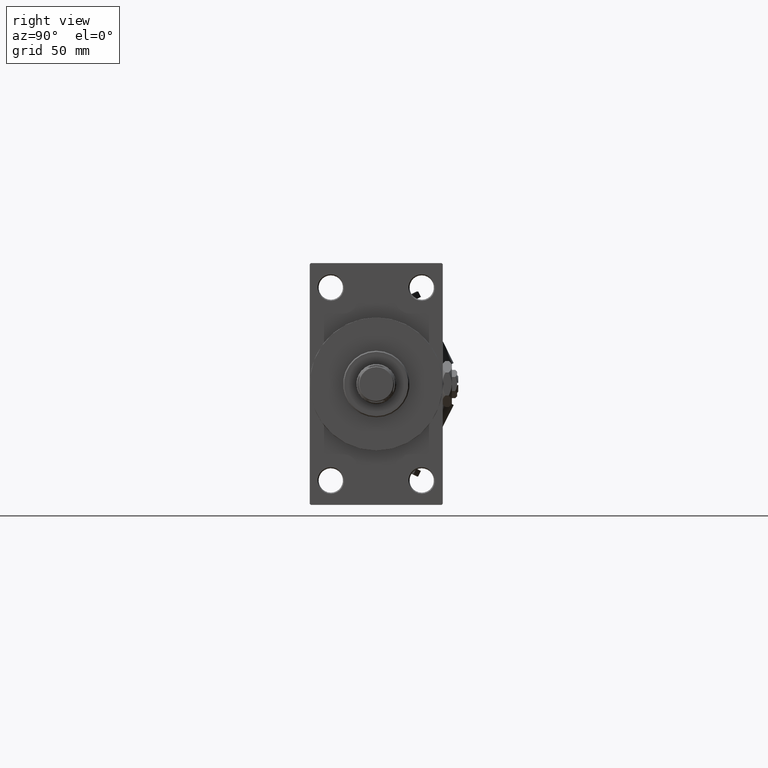
[diagram: clean part render]
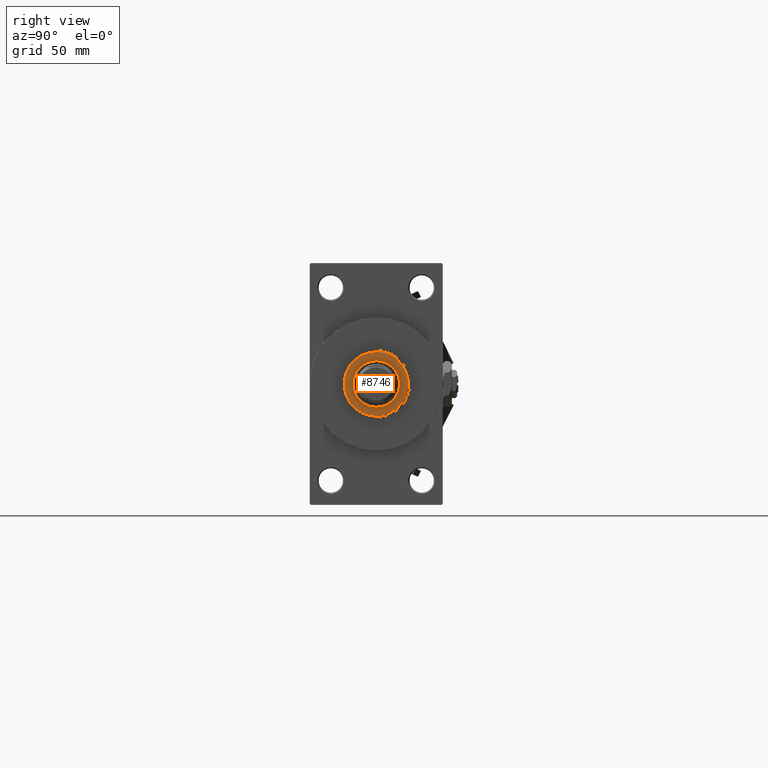
[diagram: same view with one face highlighted and labeled with its STEP entity id]
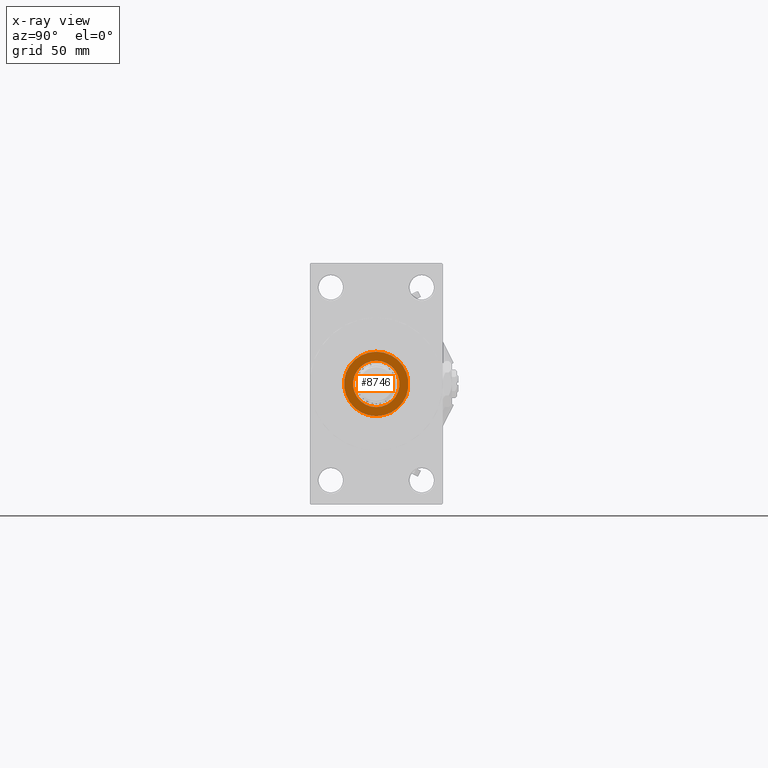
[diagram: x-ray of the same camera — body ghosted, the highlighted face saturated]
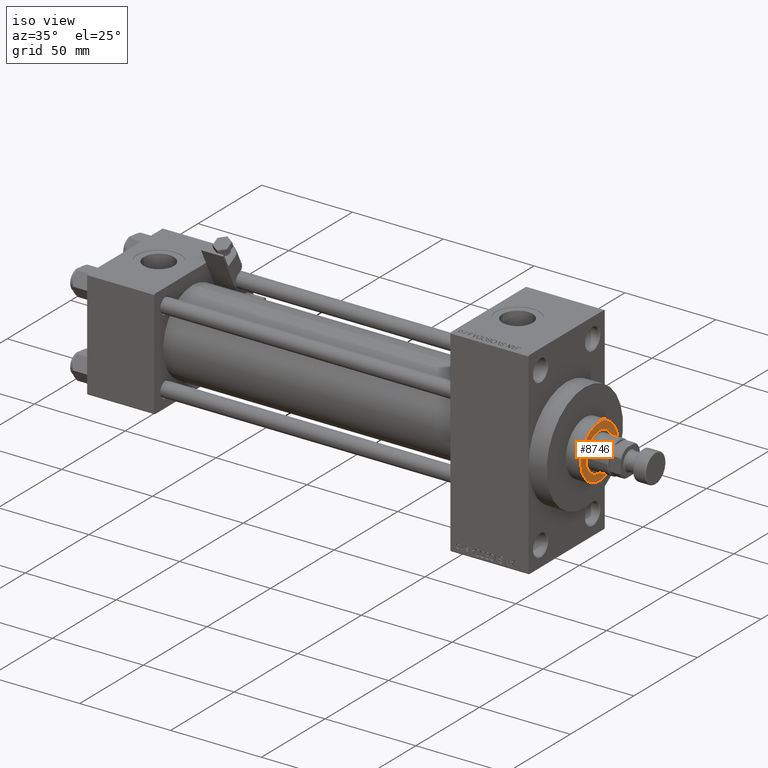
[diagram: same view with one face highlighted and labeled with its STEP entity id]
A machine part, right view. The second image highlights one B-rep face of the part: STEP entity #8746.
The next image is the same camera in x-ray: the body ghosted, the highlighted face saturated — about 0% of this face is hidden behind the body in this view.
A second angle (iso view) of the same face is appended — the face is thin or edge-on in the first view.
In plain terms, the highlighted planar face has unit normal (1, -0, -0).
Its self-contained STEP definition (entity closure, byte-faithful):
#676 = DIRECTION ( 'NONE',  ( 1.000000000000000000, 0.000000000000000000, 0.000000000000000000 ) ) ;
#1098 = DIRECTION ( 'NONE',  ( 0.000000000000000000, 0.000000000000000000, 1.000000000000000000 ) ) ;
#1357 = CARTESIAN_POINT ( 'NONE',  ( 0.000000000000000000, 0.000000000000000000, 51.25999999999999801 ) ) ;
#4078 = DIRECTION ( 'NONE',  ( 0.000000000000000000, 0.000000000000000000, 1.000000000000000000 ) ) ;
#4099 = CARTESIAN_POINT ( 'NONE',  ( -14.49999999999999112, 0.000000000000000000, 51.25999999999999801 ) ) ;
#6895 = CARTESIAN_POINT ( 'NONE',  ( 0.000000000000000000, 0.000000000000000000, 51.25999999999999801 ) ) ;
#7086 = ORIENTED_EDGE ( 'NONE', *, *, #15130, .F. ) ;
#7169 = DIRECTION ( 'NONE',  ( 1.000000000000000000, 0.000000000000000000, 0.000000000000000000 ) ) ;
#8126 = CARTESIAN_POINT ( 'NONE',  ( 0.000000000000000000, 0.000000000000000000, 51.25999999999999801 ) ) ;
#8746 = ADVANCED_FACE ( 'NONE', ( #29242, #25639 ), #22029, .T. ) ;
#8915 = VERTEX_POINT ( 'NONE', #30492 ) ;
#10418 = ORIENTED_EDGE ( 'NONE', *, *, #21867, .T. ) ;
#11469 = DIRECTION ( 'NONE',  ( 1.000000000000000000, 0.000000000000000000, -0.000000000000000000 ) ) ;
#14173 = CIRCLE ( 'NONE', #36210, 14.49999999999999112 ) ;
#14222 = EDGE_LOOP ( 'NONE', ( #43264, #10418 ) ) ;
#15130 = EDGE_CURVE ( 'NONE', #17408, #19313, #22758, .T. ) ;
#15371 = DIRECTION ( 'NONE',  ( 0.000000000000000000, 0.000000000000000000, 1.000000000000000000 ) ) ;
#15700 = CIRCLE ( 'NONE', #49317, 10.50000000000000000 ) ;
#16294 = CIRCLE ( 'NONE', #45019, 14.49999999999999112 ) ;
#17408 = VERTEX_POINT ( 'NONE', #24744 ) ;
#18163 = DIRECTION ( 'NONE',  ( 0.000000000000000000, 0.000000000000000000, 1.000000000000000000 ) ) ;
#19313 = VERTEX_POINT ( 'NONE', #21168 ) ;
#21168 = CARTESIAN_POINT ( 'NONE',  ( -10.50000000000000000, 1.285879139104720831E-15, 51.25999999999999801 ) ) ;
#21273 = ORIENTED_EDGE ( 'NONE', *, *, #30290, .F. ) ;
#21867 = EDGE_CURVE ( 'NONE', #8915, #46485, #16294, .T. ) ;
#22029 = PLANE ( 'NONE',  #47105 ) ;
#22758 = CIRCLE ( 'NONE', #37555, 10.50000000000000000 ) ;
#24744 = CARTESIAN_POINT ( 'NONE',  ( 10.50000000000000000, 0.000000000000000000, 51.25999999999999801 ) ) ;
#25639 = FACE_OUTER_BOUND ( 'NONE', #14222, .T. ) ;
#29242 = FACE_BOUND ( 'NONE', #32060, .T. ) ;
#29536 = EDGE_CURVE ( 'NONE', #46485, #8915, #14173, .T. ) ;
#30290 = EDGE_CURVE ( 'NONE', #19313, #17408, #15700, .T. ) ;
#30492 = CARTESIAN_POINT ( 'NONE',  ( 14.49999999999999112, 1.806354028742345013E-15, 51.25999999999999801 ) ) ;
#30548 = CARTESIAN_POINT ( 'NONE',  ( 0.000000000000000000, 0.000000000000000000, 51.25999999999999801 ) ) ;
#32060 = EDGE_LOOP ( 'NONE', ( #7086, #21273 ) ) ;
#32709 = DIRECTION ( 'NONE',  ( 1.000000000000000000, 0.000000000000000000, 0.000000000000000000 ) ) ;
#34667 = DIRECTION ( 'NONE',  ( 1.000000000000000000, 0.000000000000000000, 0.000000000000000000 ) ) ;
#36133 = DIRECTION ( 'NONE',  ( 0.000000000000000000, 0.000000000000000000, 1.000000000000000000 ) ) ;
#36210 = AXIS2_PLACEMENT_3D ( 'NONE', #6895, #15371, #34667 ) ;
#37555 = AXIS2_PLACEMENT_3D ( 'NONE', #8126, #36133, #676 ) ;
#43264 = ORIENTED_EDGE ( 'NONE', *, *, #29536, .T. ) ;
#44896 = CARTESIAN_POINT ( 'NONE',  ( 0.000000000000000000, 0.000000000000000000, 51.25999999999999801 ) ) ;
#45019 = AXIS2_PLACEMENT_3D ( 'NONE', #1357, #1098, #32709 ) ;
#46485 = VERTEX_POINT ( 'NONE', #4099 ) ;
#47105 = AXIS2_PLACEMENT_3D ( 'NONE', #44896, #18163, #11469 ) ;
#49317 = AXIS2_PLACEMENT_3D ( 'NONE', #30548, #4078, #7169 ) ;